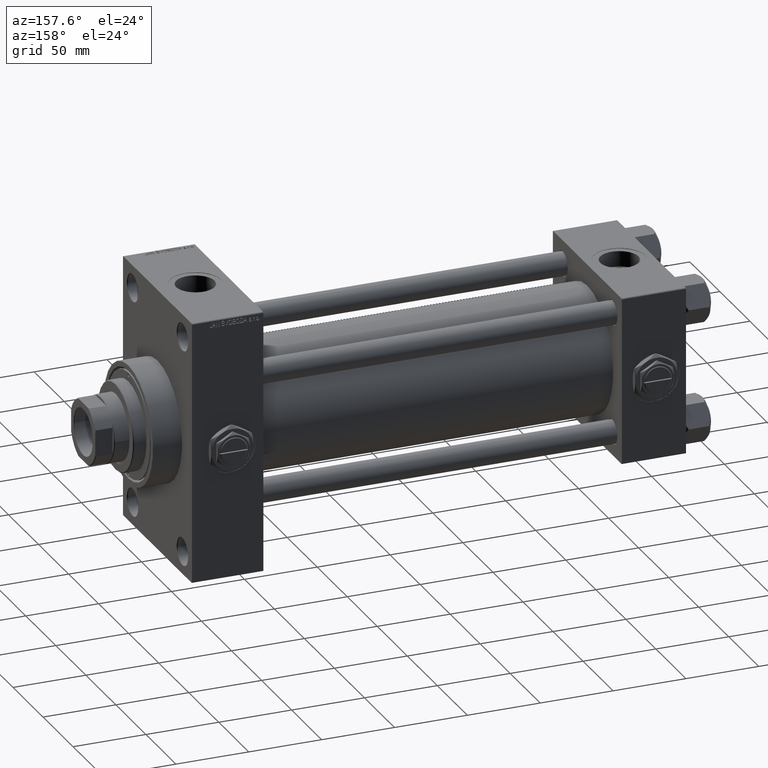
[diagram: clean part render]
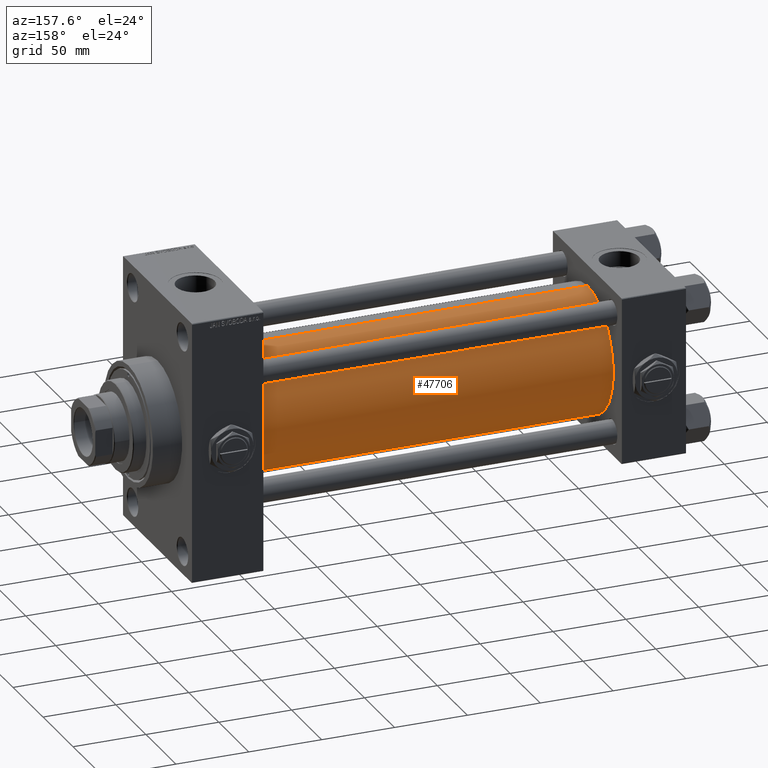
[diagram: same view with one face highlighted and labeled with its STEP entity id]
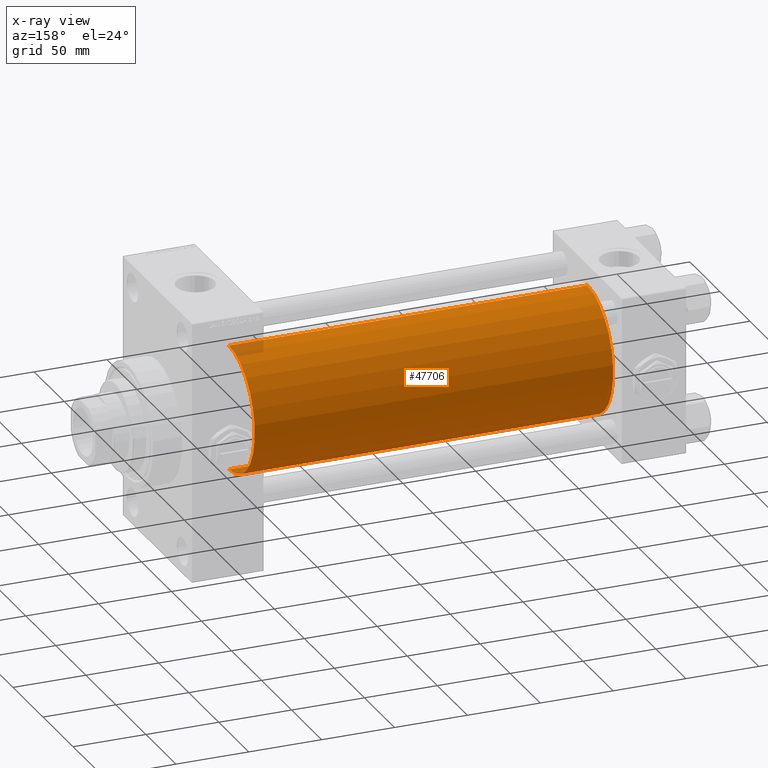
[diagram: x-ray of the same camera — body ghosted, the highlighted face saturated]
A machine part, auxiliary view. The second image highlights one B-rep face of the part: STEP entity #47706.
The next image is the same camera in x-ray: the body ghosted, the highlighted face saturated — about 1% of this face is hidden behind the body in this view.
In plain terms, the highlighted cylindrical surface (partial cylindrical patch) has radius 43 mm, axis along (-1, -0, -0).
Its self-contained STEP definition (entity closure, byte-faithful):
#875 = CARTESIAN_POINT ( 'NONE',  ( 290.0000000000000000, 2.663896022368408223E-15, -43.00000000000000000 ) ) ;
#2131 = VERTEX_POINT ( 'NONE', #28895 ) ;
#5834 = DIRECTION ( 'NONE',  ( -1.000000000000000000, -0.000000000000000000, -0.000000000000000000 ) ) ;
#6935 = DIRECTION ( 'NONE',  ( -1.000000000000000000, -0.000000000000000000, -0.000000000000000000 ) ) ;
#10188 = ORIENTED_EDGE ( 'NONE', *, *, #32552, .F. ) ;
#12872 = AXIS2_PLACEMENT_3D ( 'NONE', #22727, #18903, #34337 ) ;
#13937 = AXIS2_PLACEMENT_3D ( 'NONE', #26538, #49998, #15128 ) ;
#15128 = DIRECTION ( 'NONE',  ( 0.000000000000000000, 0.000000000000000000, 1.000000000000000000 ) ) ;
#15735 = LINE ( 'NONE', #41595, #20544 ) ;
#18903 = DIRECTION ( 'NONE',  ( 1.000000000000000000, 0.000000000000000000, 0.000000000000000000 ) ) ;
#20544 = VECTOR ( 'NONE', #6935, 1000.000000000000000 ) ;
#21414 = EDGE_CURVE ( 'NONE', #2131, #28552, #49440, .T. ) ;
#22727 = CARTESIAN_POINT ( 'NONE',  ( 290.0000000000000000, -2.602085213965210642E-15, 0.000000000000000000 ) ) ;
#24125 = EDGE_CURVE ( 'NONE', #27968, #2131, #15735, .T. ) ;
#24938 = ORIENTED_EDGE ( 'NONE', *, *, #24125, .T. ) ;
#26538 = CARTESIAN_POINT ( 'NONE',  ( 43.99999999999998579, -2.602085213965210642E-15, 0.000000000000000000 ) ) ;
#27968 = VERTEX_POINT ( 'NONE', #875 ) ;
#28174 = ORIENTED_EDGE ( 'NONE', *, *, #21414, .T. ) ;
#28552 = VERTEX_POINT ( 'NONE', #43414 ) ;
#28895 = CARTESIAN_POINT ( 'NONE',  ( 43.99999999999998579, 2.663896022368408223E-15, -43.00000000000000000 ) ) ;
#32552 = EDGE_CURVE ( 'NONE', #36225, #28552, #40488, .T. ) ;
#32921 = CARTESIAN_POINT ( 'NONE',  ( 290.0000000000000000, -2.602085213965210642E-15, 43.00000000000000000 ) ) ;
#34337 = DIRECTION ( 'NONE',  ( 0.000000000000000000, 0.000000000000000000, -1.000000000000000000 ) ) ;
#34708 = CIRCLE ( 'NONE', #12872, 43.00000000000000000 ) ;
#36225 = VERTEX_POINT ( 'NONE', #46112 ) ;
#37505 = CYLINDRICAL_SURFACE ( 'NONE', #46839, 43.00000000000000000 ) ;
#38467 = ORIENTED_EDGE ( 'NONE', *, *, #47196, .F. ) ;
#38699 = EDGE_LOOP ( 'NONE', ( #38467, #24938, #28174, #10188 ) ) ;
#40488 = LINE ( 'NONE', #32921, #44208 ) ;
#40529 = DIRECTION ( 'NONE',  ( 0.000000000000000000, 0.000000000000000000, 1.000000000000000000 ) ) ;
#41595 = CARTESIAN_POINT ( 'NONE',  ( 290.0000000000000000, 2.663896022368408223E-15, -43.00000000000000000 ) ) ;
#43414 = CARTESIAN_POINT ( 'NONE',  ( 43.99999999999998579, -2.602085213965210642E-15, 43.00000000000000000 ) ) ;
#44208 = VECTOR ( 'NONE', #5834, 1000.000000000000000 ) ;
#44313 = DIRECTION ( 'NONE',  ( -1.000000000000000000, -0.000000000000000000, -0.000000000000000000 ) ) ;
#46112 = CARTESIAN_POINT ( 'NONE',  ( 290.0000000000000000, -2.602085213965210642E-15, 43.00000000000000000 ) ) ;
#46839 = AXIS2_PLACEMENT_3D ( 'NONE', #48837, #44313, #40529 ) ;
#47196 = EDGE_CURVE ( 'NONE', #27968, #36225, #34708, .T. ) ;
#47706 = ADVANCED_FACE ( 'NONE', ( #49080 ), #37505, .T. ) ;
#48837 = CARTESIAN_POINT ( 'NONE',  ( 290.0000000000000000, -2.602085213965210642E-15, 0.000000000000000000 ) ) ;
#49080 = FACE_OUTER_BOUND ( 'NONE', #38699, .T. ) ;
#49440 = CIRCLE ( 'NONE', #13937, 43.00000000000000000 ) ;
#49998 = DIRECTION ( 'NONE',  ( 1.000000000000000000, -0.000000000000000000, 0.000000000000000000 ) ) ;